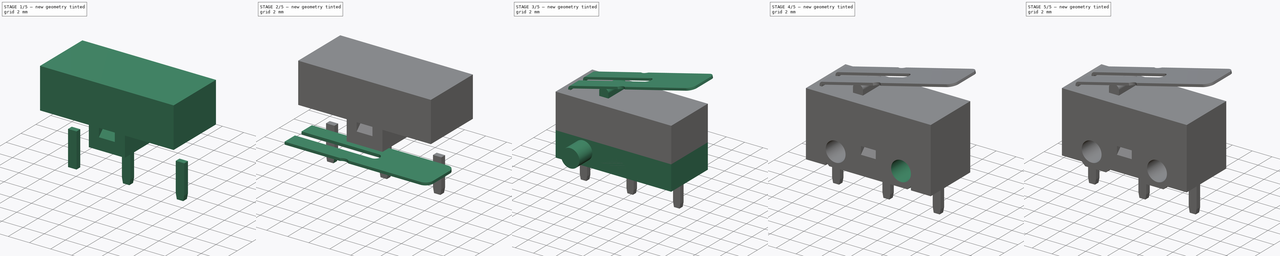
[diagram: build sequence overview — one tinted view per stage of 5, left to right]
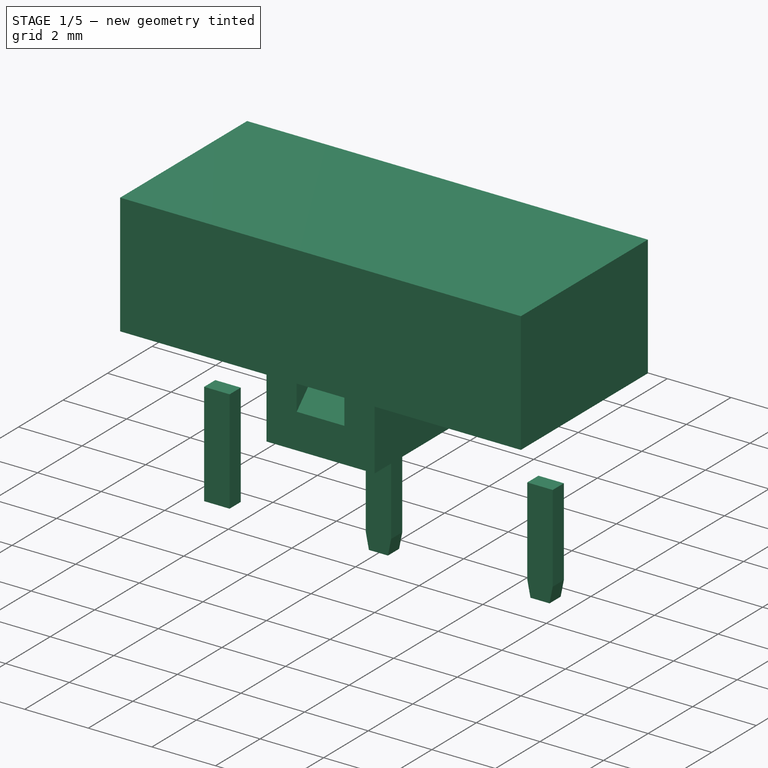
[diagram: stage 1 of 5 — iso view after this stage's code; geometry added in this stage tinted green]
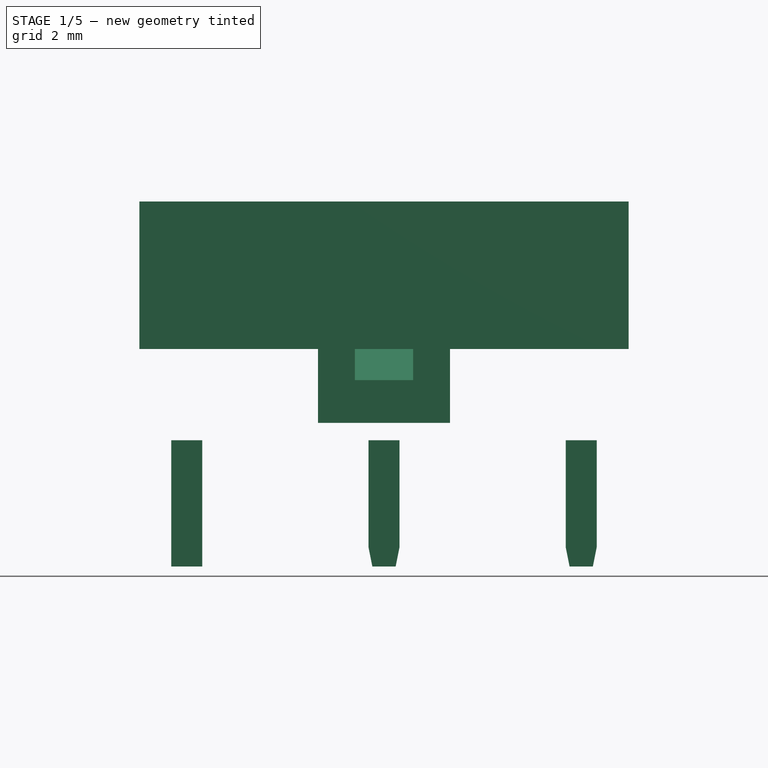
[diagram: stage 1 of 5 — front view after this stage's code; geometry added in this stage tinted green]
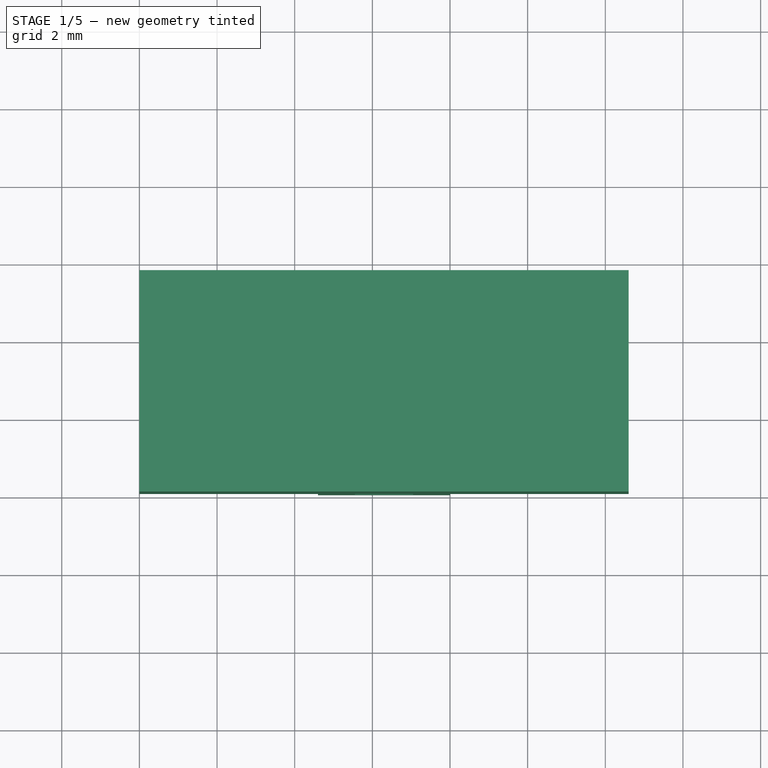
[diagram: stage 1 of 5 — top view after this stage's code; geometry added in this stage tinted green]
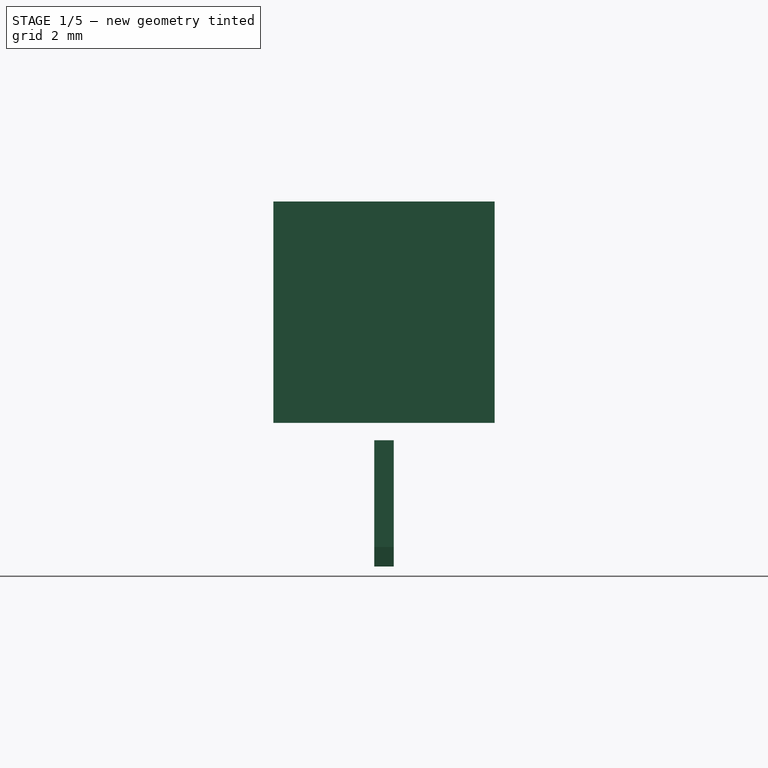
[diagram: stage 1 of 5 — right view after this stage's code; geometry added in this stage tinted green]
FCSTD DOCUMENT  (FreeCAD 0.18.4R)
Label: GT1-9898
License: All rights reserved
LicenseURL: http://en.wikipedia.org/wiki/All_rights_reserved
objects: Part::Cut×16, Part::Box×12, Part::Extrusion×10, Sketcher::SketchObject×9, Part::Chamfer×4, Part::Cylinder×2, Part::Fillet×2, Part::Mirroring×1, Part::FeaturePython×1
note: 57 computed .brp shape members not serialized (recipe doc carries the construction recipe); baked Part::Feature solids carry a one-line shape summary decoded from their .brp

FEATURE [Part::Box] Box009  label="Cube009"
  AttacherType = Attacher::AttachEngine3D
  Height = 3.25
  Length = 0.8
  Placement = pos=(0.82,2.6,-2.9) rot=(0,0,1;0rad)
  Width = 0.5
  expr: Placement.Base.y = 5.7 / 2 - 0.5 / 2
  expr: Placement.Base.x = 5.9 - 2.54 * 2
FEATURE [Part::Box] Box010  label="Cube010"
  AttacherType = Attacher::AttachEngine3D
  Height = 3.25
  Length = 0.8
  Placement = pos=(5.9,2.6,-2.9) rot=(0,0,1;0rad)
  Width = 0.5
FEATURE [Part::Box] Box011  label="Cube011"
  AttacherType = Attacher::AttachEngine3D
  Height = 3.25
  Length = 0.8
  Placement = pos=(10.98,2.6,-2.9) rot=(0,0,1;0rad)
  Width = 0.5
  expr: Placement.Base.x = 5.9 + 2.54 + 2.54
FEATURE [Part::Chamfer] Chamfer001
  Base = -> Box010
  Edges = 2 edges: [Edge4 r1=0.5 r2=0.1,Edge8 r1=0.5 r2=0.1]
FEATURE [Part::Chamfer] Chamfer002
  Base = -> Box011
  Edges = 2 edges: [Edge4 r1=0.5 r2=0.1,Edge8 r1=0.5 r2=0.1]
FEATURE [Sketcher::SketchObject] Sketch008
  MapMode = 45
  Placement = pos=(0,0,0) rot=(-1,0,0;4.71239rad)
  Support = -> [Sketch008,Cut001]
  sketch-geometry (4):
    g0: LineSegment StartX=5.55 StartY=1.6 StartZ=0 EndX=7.05 EndY=1.6 EndZ=0
    g1: LineSegment StartX=7.05 StartY=1.6 StartZ=0 EndX=7.05 EndY=2.7 EndZ=0
    g2: LineSegment StartX=7.05 StartY=2.7 StartZ=0 EndX=5.55 EndY=2.7 EndZ=0
    g3: LineSegment StartX=5.55 StartY=2.7 StartZ=0 EndX=5.55 EndY=1.6 EndZ=0
  constraints (12):
    c: Coincident(g0,g1)
    c: Coincident(g1,g2)
    c: Coincident(g2,g3)
    c: Coincident(g3,g0)
    c: Horizontal(g0)
    c: Horizontal(g2)
    c: Vertical(g1)
    c: Vertical(g3)
    c: DistanceY(g-1,g0) = 1.6
    c: Distance(g0) = 1.5
    c: Distance(g1) = 1.1
    c: DistanceX(g-1,g0) = 5.55
FEATURE [Part::Extrusion] Extrude008
  Base = -> Sketch008
  Dir = (0,-1,0)
  DirMode = 2
  FaceMakerClass = Part::FaceMakerBullseye
  LengthFwd = -5.7
  LengthRev = 0
  Solid = true
  Symmetric = false
FEATURE [Part::Extrusion] Extrude009
  Base = -> Sketch008
  Dir = (0,-1,0)
  DirMode = 2
  FaceMakerClass = Part::FaceMakerBullseye
  LengthFwd = -5.7
  LengthRev = 0
  Solid = true
  Symmetric = false
FEATURE [Part::Cut] Cut015
  Base = -> Cut001
  Tool = -> Extrude008
FEATURE [Part::Chamfer] Chamfer003
  Base = -> Extrude009
  Edges = 2 edges r=0.8: [Edge9,Edge10]
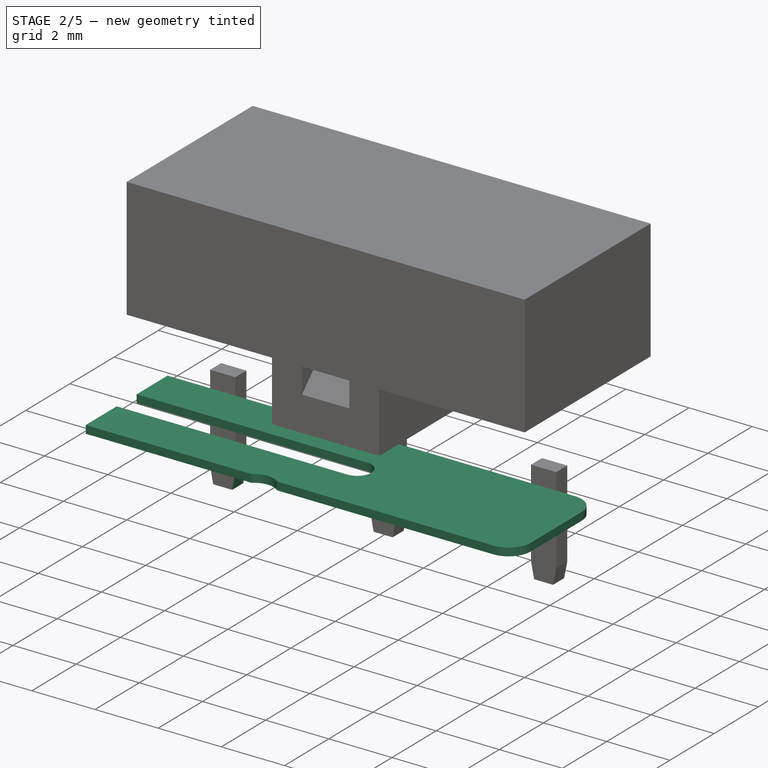
[diagram: stage 2 of 5 — iso view after this stage's code; geometry added in this stage tinted green]
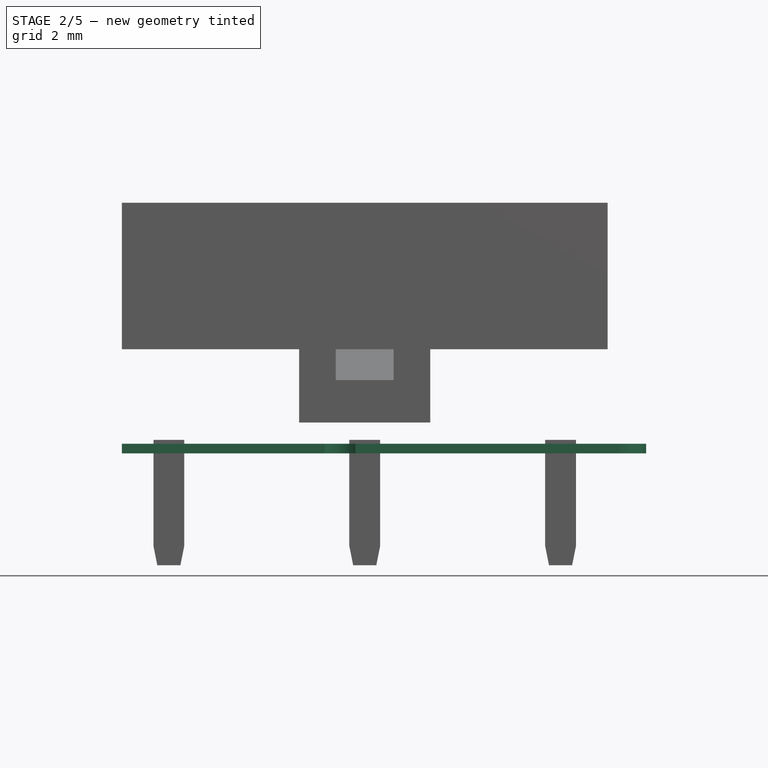
[diagram: stage 2 of 5 — front view after this stage's code; geometry added in this stage tinted green]
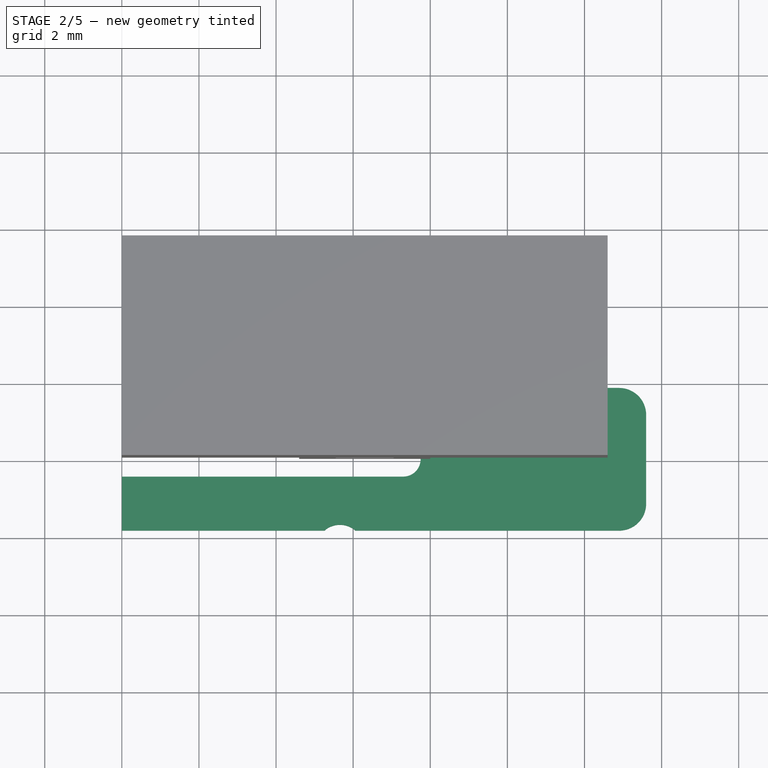
[diagram: stage 2 of 5 — top view after this stage's code; geometry added in this stage tinted green]
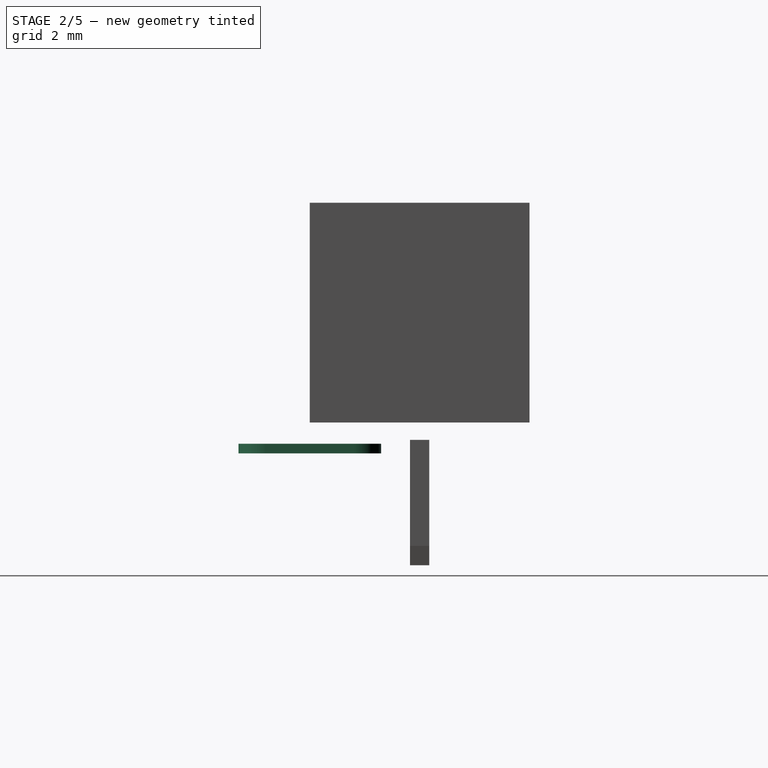
[diagram: stage 2 of 5 — right view after this stage's code; geometry added in this stage tinted green]
FEATURE [Sketcher::SketchObject] Sketch004
  sketch-geometry (4):
    g0: LineSegment StartX=0 StartY=-0.45 StartZ=0 EndX=0 EndY=0.45 EndZ=0
    g1: LineSegment StartX=0 StartY=0.45 StartZ=0 EndX=7.3 EndY=0.45 EndZ=0
    g2: LineSegment StartX=0 StartY=-0.45 StartZ=0 EndX=7.3 EndY=-0.45 EndZ=0
    g3: ArcOfCircle CenterX=7.3 CenterY=0 CenterZ=0 NormalX=0 NormalY=0 NormalZ=1 AngleXU=0 Radius=0.45 StartAngle=4.71239 EndAngle=7.85398
  constraints (13):
    c: Vertical(g0)
    c: DistanceY(g-1,g0) = 0.45
    c: DistanceY(g0,g-1) = 0.45
    c: DistanceX(g-1,g0) = 0
    c: Horizontal(g1)
    c: Coincident(g1,g0)
    c: Distance(g1) = 7.3
    c: Horizontal(g2)
    c: Coincident(g2,g0)
    c: Equal(g2,g1)
    c: DistanceX(g3,g2) = 0
    c: Coincident(g3,g2)
    c: Coincident(g3,g1)
FEATURE [Sketcher::SketchObject] Sketch006
  MapMode = 2
  sketch-geometry (3):
    g0: ArcOfCircle CenterX=5.65717 CenterY=2.30833 CenterZ=0 NormalX=0 NormalY=0 NormalZ=1 AngleXU=0 Radius=0.608333 StartAngle=3.99485 EndAngle=5.42993
    g1: LineSegment StartX=5.25717 StartY=1.85 StartZ=0 EndX=6.05717 EndY=1.85 EndZ=0
    g2: GeomPoint X=5.65717 Y=1.7 Z=0
  constraints (8):
    c: Horizontal(g1)
    c: Coincident(g1,g0)
    c: Coincident(g1,g0)
    c: DistanceX(g1,g1) = 0.8
    c: PointOnObject(g2,g0)
    c: DistanceY(g2,g0) = 0.15
    c: DistanceX(g0,g2) = 0.4
    c: DistanceY(g-1,g0) = 1.85
FEATURE [Part::Extrusion] Extrude005
  Base = -> Sketch006
  Dir = (0,0,1)
  DirMode = 2
  FaceMakerClass = Part::FaceMakerBullseye
  LengthFwd = 0.25
  LengthRev = 0
  Solid = true
  Symmetric = false
FEATURE [Part::Mirroring] Part__Mirroring  label="Extrude005 (Mirror #1)"
  Base = (0,0,0)
  Normal = (0,1,0)
  Source = -> Extrude005
FEATURE [Part::Extrusion] Extrude007
  Base = -> Sketch004
  Dir = (0,0,1)
  DirMode = 2
  FaceMakerClass = Part::FaceMakerBullseye
  LengthFwd = 0.25
  LengthRev = 0
  Solid = true
  Symmetric = false
FEATURE [Sketcher::SketchObject] Sketch007
  sketch-geometry (4):
    g0: LineSegment StartX=0 StartY=-1.85 StartZ=0 EndX=13.6 EndY=-1.85 EndZ=0
    g1: LineSegment StartX=13.6 StartY=-1.85 StartZ=0 EndX=13.6 EndY=1.85 EndZ=0
    g2: LineSegment StartX=13.6 StartY=1.85 StartZ=0 EndX=0 EndY=1.85 EndZ=0
    g3: LineSegment StartX=0 StartY=1.85 StartZ=0 EndX=0 EndY=-1.85 EndZ=0
  constraints (12):
    c: Coincident(g0,g1)
    c: Coincident(g1,g2)
    c: Coincident(g2,g3)
    c: Coincident(g3,g0)
    c: Horizontal(g0)
    c: Horizontal(g2)
    c: Vertical(g1)
    c: Vertical(g3)
    c: Distance(g2) = 13.6
    c: Distance(g1) = 3.7
    c: DistanceY(g-1,g2) = 1.85
    c: DistanceX(g-1,g0) = 0
FEATURE [Part::Extrusion] Extrude004
  Base = -> Sketch007
  Dir = (0,0,1)
  DirMode = 2
  FaceMakerClass = Part::FaceMakerBullseye
  LengthFwd = 0.25
  LengthRev = 0
  Solid = true
  Symmetric = false
FEATURE [Part::Cut] Cut014
  Base = -> Extrude004
  Tool = -> Extrude007
FEATURE [Part::Fillet] Fillet001
  Base = -> Cut014
  Edges = 2 edges r=0.7: [Edge2,Edge8]
FEATURE [Part::Cut] Cut013
  Base = -> Fillet001
  Tool = -> Part__Mirroring
FEATURE [Part::Cut] Cut001
  Base = -> Cut
  Tool = -> Box004
FEATURE [Part::Chamfer] Chamfer
  Base = -> Box009
  Edges = 2 edges: [Edge4 r1=0.5 r2=0.1,Edge8 r1=0.5 r2=0.1]
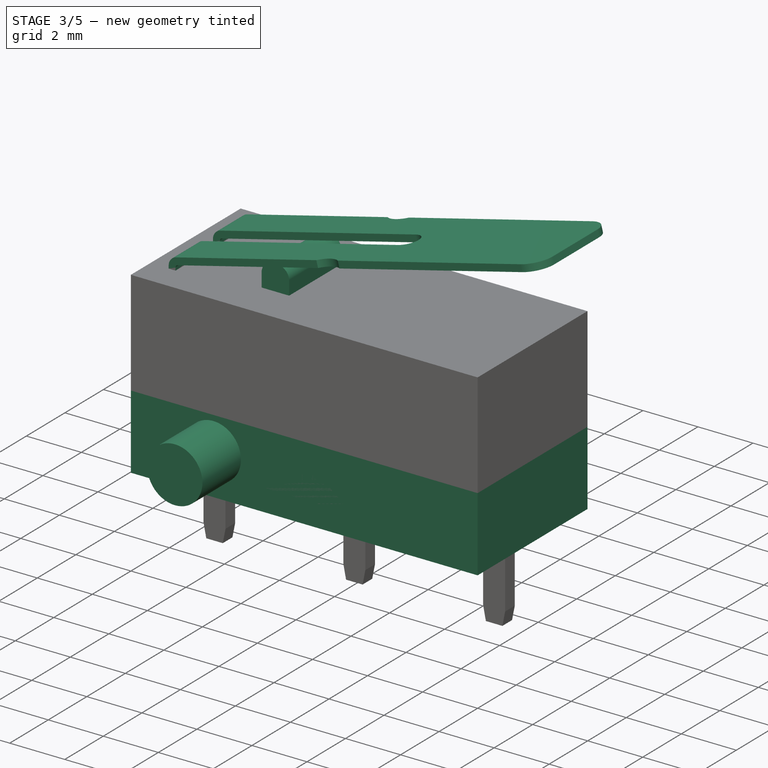
[diagram: stage 3 of 5 — iso view after this stage's code; geometry added in this stage tinted green]
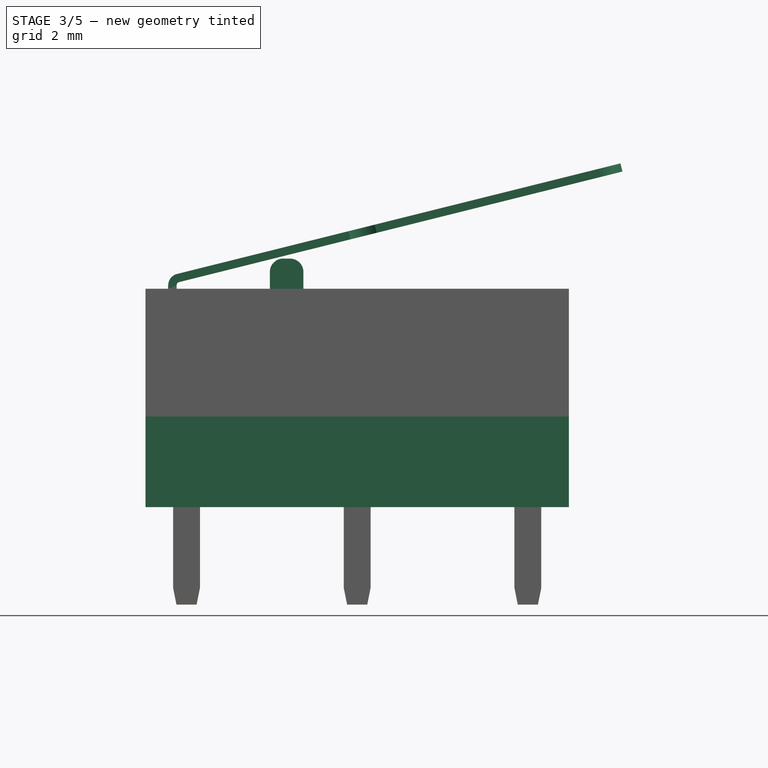
[diagram: stage 3 of 5 — front view after this stage's code; geometry added in this stage tinted green]
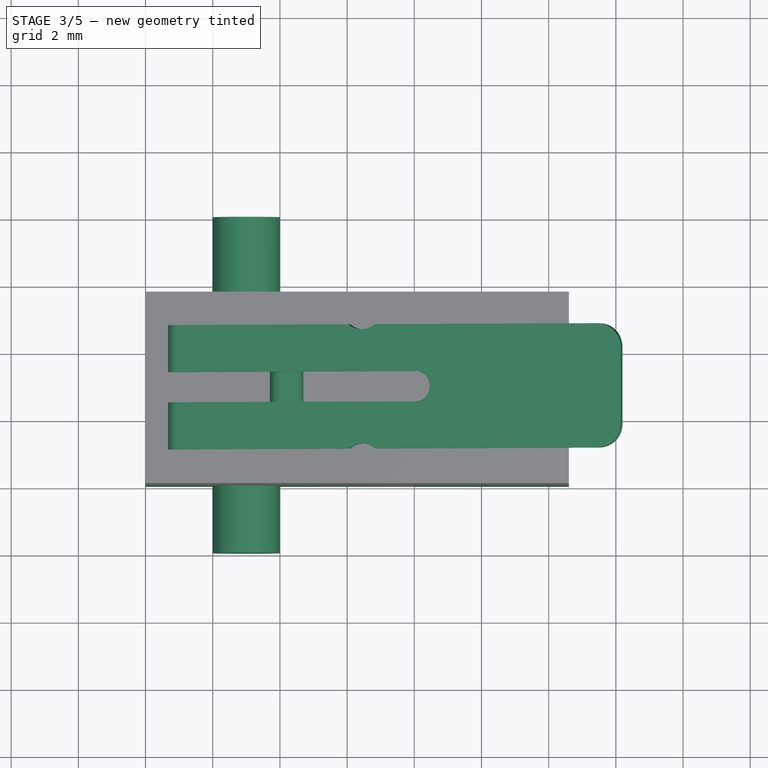
[diagram: stage 3 of 5 — top view after this stage's code; geometry added in this stage tinted green]
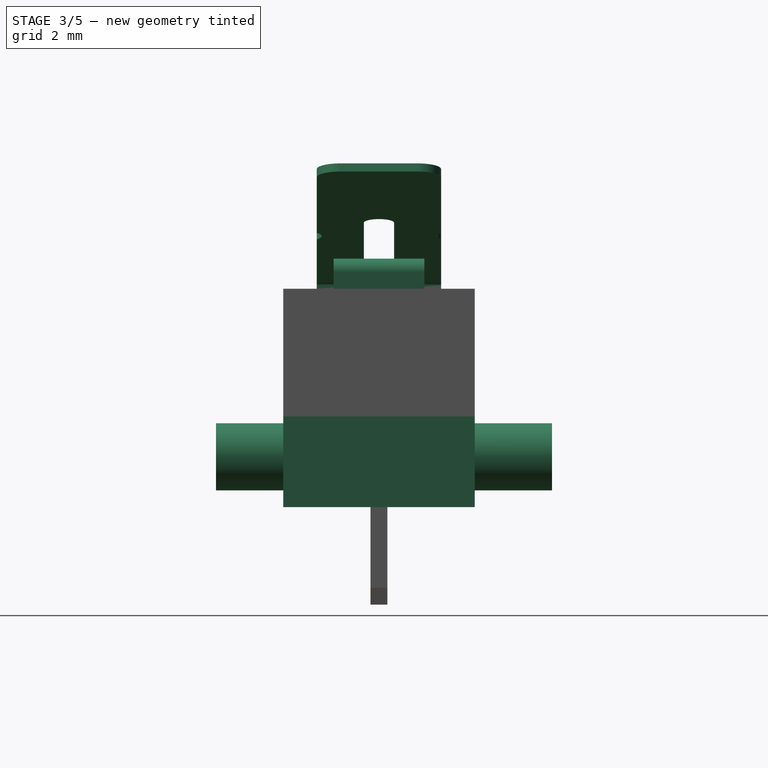
[diagram: stage 3 of 5 — right view after this stage's code; geometry added in this stage tinted green]
FEATURE [Part::Box] Box  label="Cube"
  AttacherType = Attacher::AttachEngine3D
  Height = 1.9
  Length = 3.4
  Placement = pos=(4.6,0,0.8) rot=(0,0,1;0rad)
  Width = 5.7
FEATURE [Part::Box] Box001  label="Cube001"
  AttacherType = Attacher::AttachEngine3D
  Height = 2.7
  Length = 12.6
  Width = 5.7
FEATURE [Part::Cylinder] Cylinder
  Angle = 360
  AttacherType = Attacher::AttachEngine3D
  Height = 10
  Placement = pos=(3,-2,1.5) rot=(-1,0,0;1.5708rad)
  Radius = 1
FEATURE [Sketcher::SketchObject] Sketch
  Placement = pos=(0,0,0) rot=(1,0,0;1.5708rad)
  sketch-geometry (3):
    g0: LineSegment StartX=0 StartY=0 StartZ=0 EndX=0 EndY=0.35 EndZ=0
    g1: LineSegment StartX=0 StartY=0.35 StartZ=0 EndX=0.35 EndY=0 EndZ=0
    g2: LineSegment StartX=0.35 StartY=0 StartZ=0 EndX=0 EndY=0 EndZ=0
  constraints (9):
    c: Coincident(g0,g1)
    c: Coincident(g1,g2)
    c: Coincident(g2,g0)
    c: Horizontal(g2)
    c: Perpendicular(g0,g2)
    c: Distance(g2) = 0.35
    c: Equal(g2,g0)
    c: DistanceX(g-1,g0) = 0
    c: DistanceY(g0) = 0
FEATURE [Part::Extrusion] Extrude
  Base = -> Sketch
  Dir = (0,-1,3e-16)
  DirMode = 2
  FaceMakerClass = Part::FaceMakerBullseye
  LengthFwd = -5.7
  LengthRev = 0
  Placement = pos=(2,0,0) rot=(0,0,1;0rad)
  Solid = true
  Symmetric = false
FEATURE [Part::Box] Box008  label="Cube008"
  AttacherType = Attacher::AttachEngine3D
  Height = 1
  Length = 1
  Placement = pos=(0,1.5,6.5) rot=(0,0,1;0rad)
  Width = 2.7
FEATURE [Part::Fillet] Fillet
  Base = -> Box008
  Edges = 2 edges r=0.4: [Edge2,Edge6]
  Placement = pos=(3.7,0,-0.1) rot=(0,0,1;0rad)
FEATURE [Sketcher::SketchObject] Sketch005
  MapMode = 2
  sketch-geometry (3):
    g0: ArcOfCircle CenterX=5.65717 CenterY=2.30833 CenterZ=0 NormalX=0 NormalY=0 NormalZ=1 AngleXU=0 Radius=0.608333 StartAngle=3.99485 EndAngle=5.42993
    g1: LineSegment StartX=5.25717 StartY=1.85 StartZ=0 EndX=6.05717 EndY=1.85 EndZ=0
    g2: GeomPoint X=5.65717 Y=1.7 Z=0
  constraints (8):
    c: Horizontal(g1)
    c: Coincident(g1,g0)
    c: Coincident(g1,g0)
    c: DistanceX(g1,g1) = 0.8
    c: PointOnObject(g2,g0)
    c: DistanceY(g2,g0) = 0.15
    c: DistanceX(g0,g2) = 0.4
    c: DistanceY(g-1,g0) = 1.85
FEATURE [Part::Extrusion] Extrude006
  Base = -> Sketch005
  Dir = (0,0,1)
  DirMode = 2
  FaceMakerClass = Part::FaceMakerBullseye
  LengthFwd = 0.25
  LengthRev = 0
  Solid = true
  Symmetric = false
FEATURE [Part::Cut] Cut012
  Base = -> Cut013
  Placement = pos=(0,0,0) rot=(0,-1,0;0.244346rad)
  Tool = -> Extrude006
FEATURE [Part::FeaturePython] Bend  # WARN: FeaturePython — macro-defined, semantics opaque (R4)
  AutoMiter = true
  BendType = 0
  LengthList = [0.1]
  Placement = pos=(1,2.85,6.7) rot=(0,0,1;0rad)
  ReliefFactor = 0.7
  UseReliefFactor = false
  angle = -76
  baseObject = -> Cut012 [Face12,Face5]
  bendAList = [-76]
  extend1 = 0
  extend2 = 0
  gap1 = 0
  gap2 = 0
  invert = false
  kfactor = 0.5
  length = 0.1
  miterangle1 = 0
  miterangle2 = 0
  offset = 0
  radius = 0.1
  reliefType = 0
  reliefd = 1
  reliefw = 0.8
  sketchflip = false
  sketchinvert = false
  unfold = false
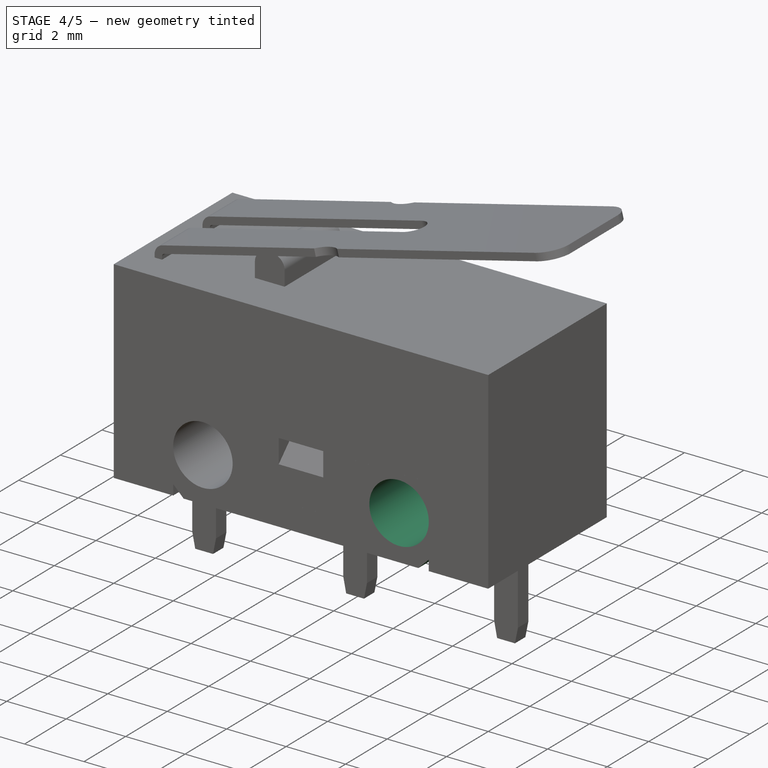
[diagram: stage 4 of 5 — iso view after this stage's code; geometry added in this stage tinted green]
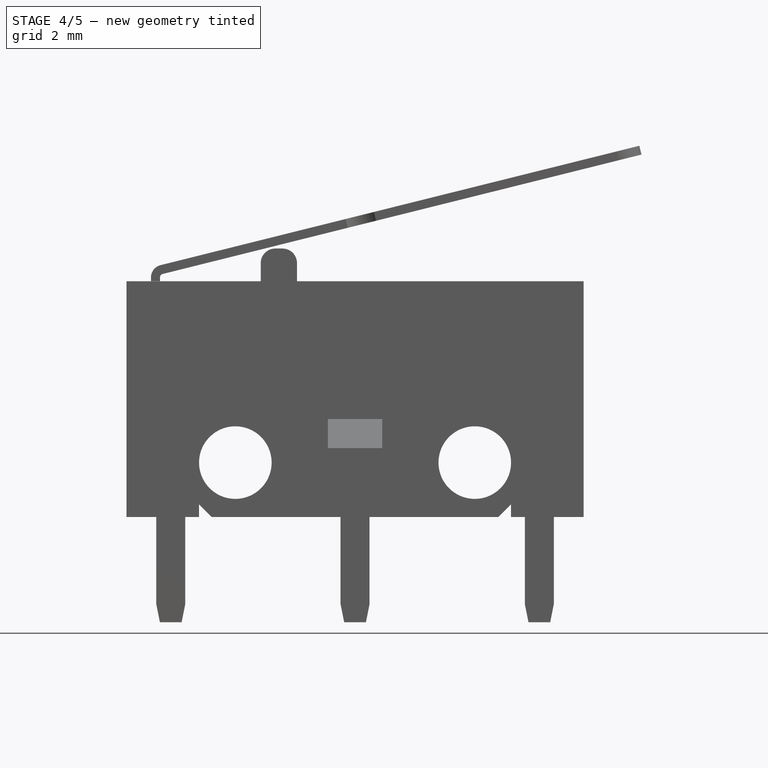
[diagram: stage 4 of 5 — front view after this stage's code; geometry added in this stage tinted green]
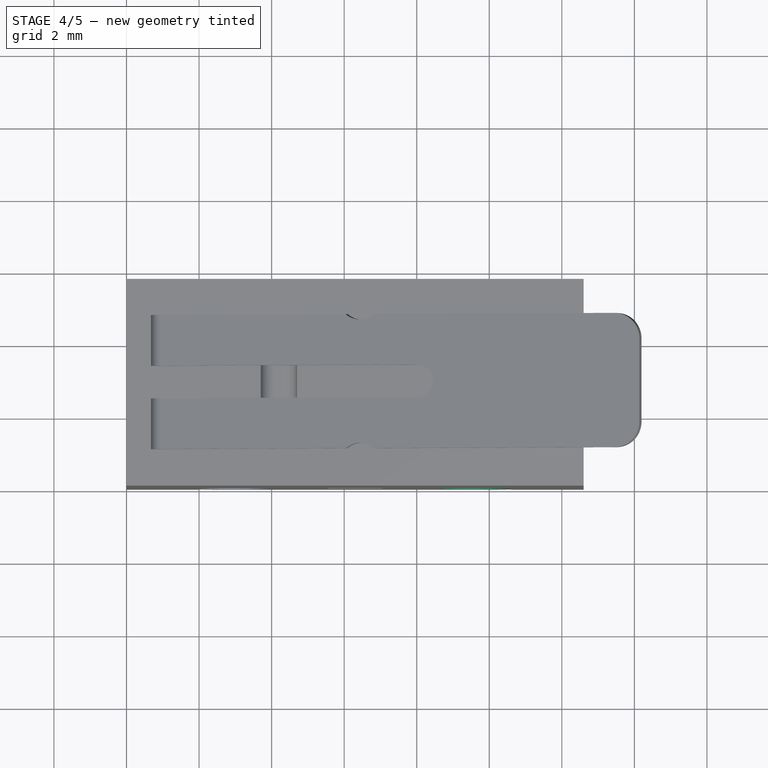
[diagram: stage 4 of 5 — top view after this stage's code; geometry added in this stage tinted green]
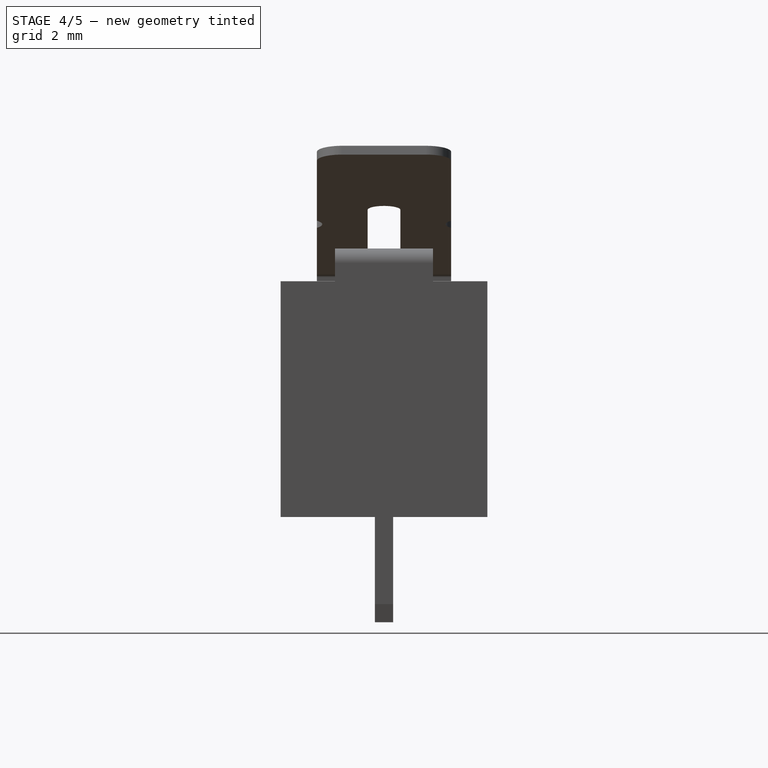
[diagram: stage 4 of 5 — right view after this stage's code; geometry added in this stage tinted green]
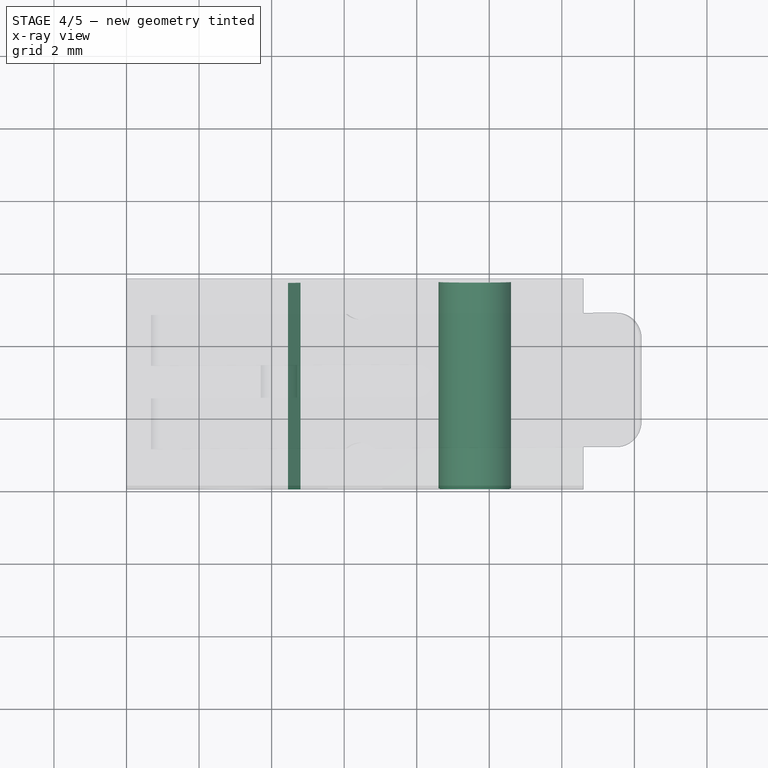
[diagram: stage 4 of 5 — x-ray composite at the top view; earlier geometry ghosted, this stage's added geometry solid]
FEATURE [Part::Box] Box002  label="Cube002"
  AttacherType = Attacher::AttachEngine3D
  Height = 5.7
  Length = 12.6
  Placement = pos=(0,0,0.8) rot=(0,0,1;0rad)
  Width = 5.7
FEATURE [Part::Box] Box003  label="Cube003"
  AttacherType = Attacher::AttachEngine3D
  Height = 1.9
  Length = 4.6
  Placement = pos=(0,0,0.8) rot=(0,0,1;0rad)
  Width = 5.7
FEATURE [Part::Box] Box004  label="Cube004"
  AttacherType = Attacher::AttachEngine3D
  Height = 1.9
  Length = 4.6
  Placement = pos=(8,0,0.8) rot=(0,0,1;0rad)
  Width = 5.7
FEATURE [Part::Cut] Cut
  Base = -> Box002
  Tool = -> Box003
FEATURE [Part::Cut] Cut002
  Base = -> Box001
  Tool = -> Box
FEATURE [Part::Cylinder] Cylinder001
  Angle = 360
  AttacherType = Attacher::AttachEngine3D
  Height = 10
  Placement = pos=(9.6,-2,1.5) rot=(-1,0,0;1.5708rad)
  Radius = 1
FEATURE [Part::Cut] Cut003
  Base = -> Cut002
  Tool = -> Cylinder
FEATURE [Part::Cut] Cut004
  Base = -> Cut003
  Tool = -> Cylinder001
FEATURE [Sketcher::SketchObject] Sketch002
  Placement = pos=(0,0,0) rot=(1,0,0;1.5708rad)
  sketch-geometry (3):
    g0: LineSegment StartX=0 StartY=0 StartZ=0 EndX=0 EndY=0.35 EndZ=0
    g1: LineSegment StartX=0 StartY=0.35 StartZ=0 EndX=0.35 EndY=0 EndZ=0
    g2: LineSegment StartX=0.35 StartY=0 StartZ=0 EndX=0 EndY=0 EndZ=0
  constraints (9):
    c: Coincident(g0,g1)
    c: Coincident(g1,g2)
    c: Coincident(g2,g0)
    c: Horizontal(g2)
    c: Perpendicular(g0,g2)
    c: Distance(g2) = 0.35
    c: Equal(g2,g0)
    c: DistanceX(g-1,g0) = 0
    c: DistanceY(g0) = 0
FEATURE [Part::Extrusion] Extrude002
  Base = -> Sketch002
  Dir = (0,-1,3e-16)
  DirMode = 2
  FaceMakerClass = Part::FaceMakerBullseye
  LengthFwd = -5.7
  LengthRev = 0
  Placement = pos=(4.8,0,0) rot=(0,-1,0;1.5708rad)
  Solid = true
  Symmetric = false
FEATURE [Sketcher::SketchObject] Sketch003
  Placement = pos=(0,0,0) rot=(1,0,0;1.5708rad)
  sketch-geometry (3):
    g0: LineSegment StartX=0 StartY=0 StartZ=0 EndX=0 EndY=0.35 EndZ=0
    g1: LineSegment StartX=0 StartY=0.35 StartZ=0 EndX=0.35 EndY=0 EndZ=0
    g2: LineSegment StartX=0.35 StartY=0 StartZ=0 EndX=0 EndY=0 EndZ=0
  constraints (9):
    c: Coincident(g0,g1)
    c: Coincident(g1,g2)
    c: Coincident(g2,g0)
    c: Horizontal(g2)
    c: Perpendicular(g0,g2)
    c: Distance(g2) = 0.35
    c: Equal(g2,g0)
    c: DistanceX(g-1,g0) = 0
    c: DistanceY(g0) = 0
FEATURE [Part::Extrusion] Extrude003
  Base = -> Sketch003
  Dir = (0,-1,3e-16)
  DirMode = 2
  FaceMakerClass = Part::FaceMakerBullseye
  LengthFwd = -5.7
  LengthRev = 0
  Placement = pos=(10.6,0,-1.1e-15) rot=(0,-1,0;1.5708rad)
  Solid = true
  Symmetric = false
FEATURE [Part::Cut] Cut005
  Base = -> Cut004
  Tool = -> Extrude
FEATURE [Part::Cut] Cut006
  Base = -> Cut005
  Tool = -> Extrude003
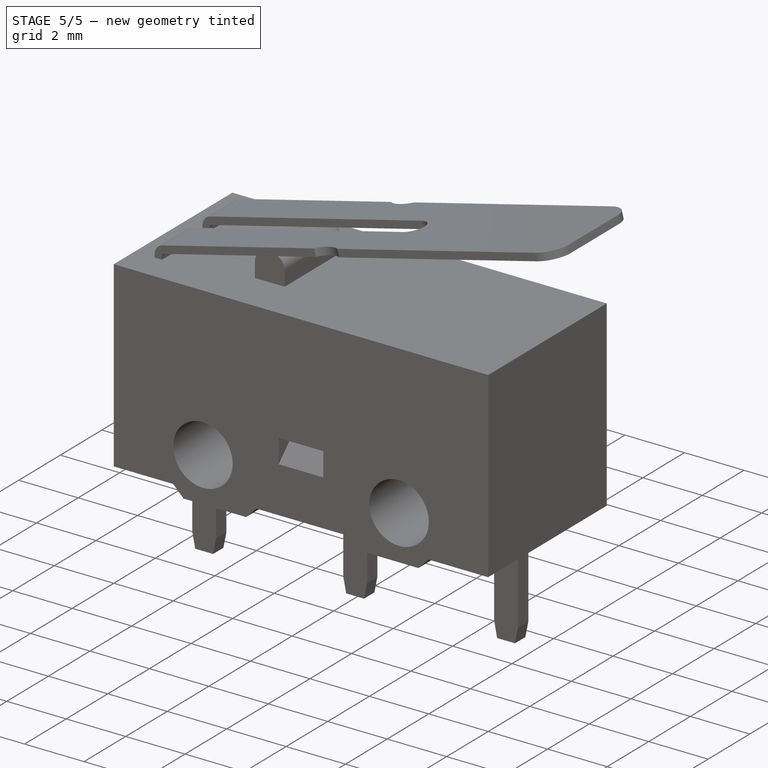
[diagram: stage 5 of 5 — iso view after this stage's code; geometry added in this stage tinted green]
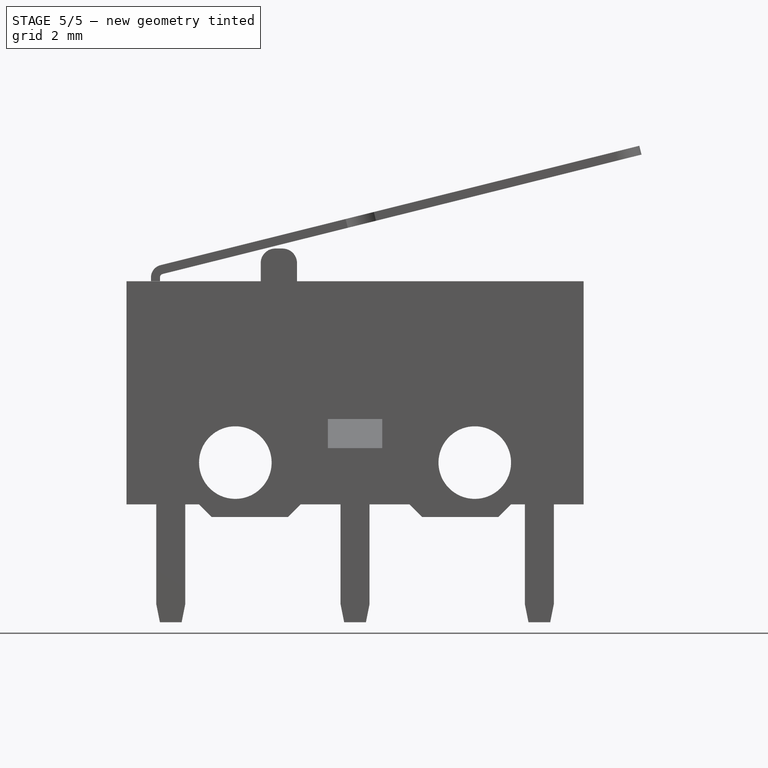
[diagram: stage 5 of 5 — front view after this stage's code; geometry added in this stage tinted green]
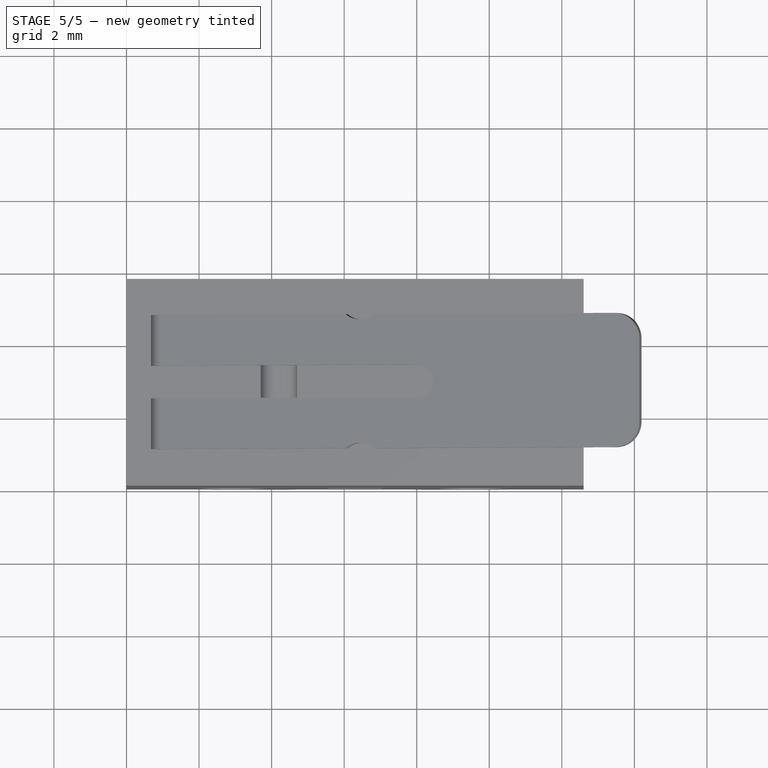
[diagram: stage 5 of 5 — top view after this stage's code; geometry added in this stage tinted green]
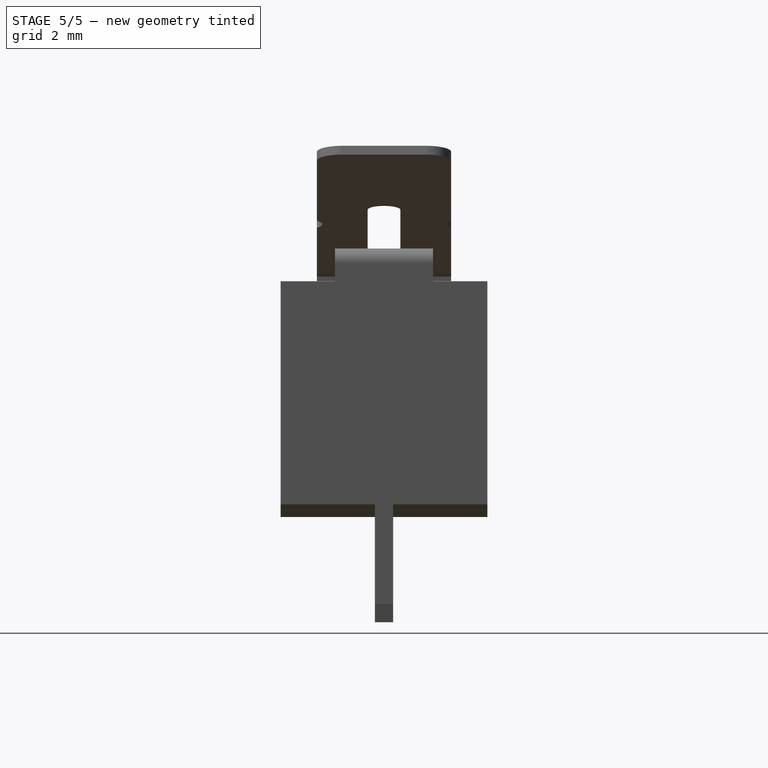
[diagram: stage 5 of 5 — right view after this stage's code; geometry added in this stage tinted green]
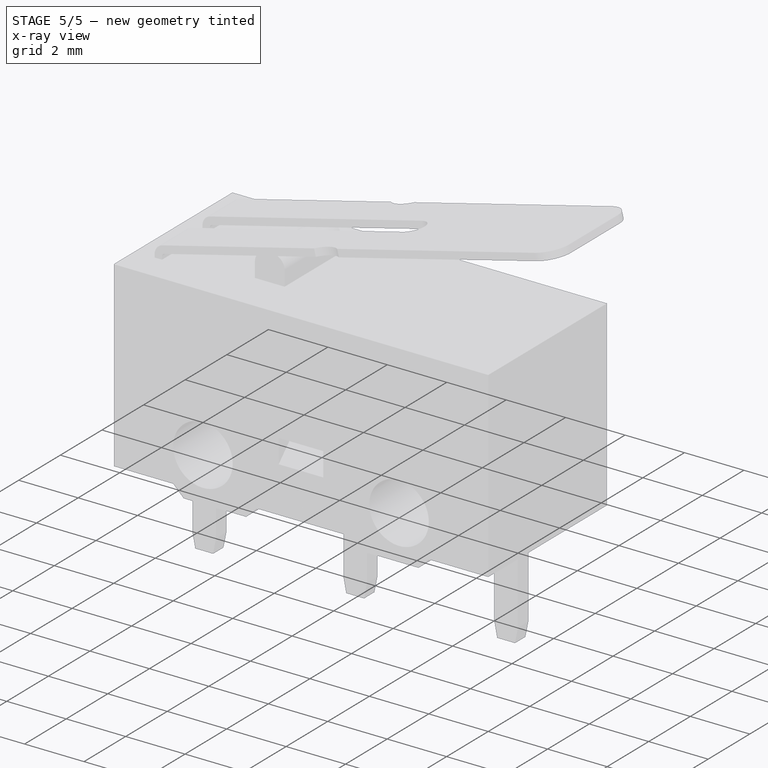
[diagram: stage 5 of 5 — x-ray composite at the iso view; earlier geometry ghosted, this stage's added geometry solid]
FEATURE [Part::Box] Box005  label="Cube005"
  AttacherType = Attacher::AttachEngine3D
  Height = 0.35
  Length = 2
  Width = 5.7
FEATURE [Part::Box] Box006  label="Cube006"
  AttacherType = Attacher::AttachEngine3D
  Height = 0.35
  Length = 3
  Placement = pos=(4.8,0,0) rot=(0,0,1;0rad)
  Width = 5.7
FEATURE [Part::Box] Box007  label="Cube007"
  AttacherType = Attacher::AttachEngine3D
  Height = 0.35
  Length = 2
  Placement = pos=(10.6,0,0) rot=(0,0,1;0rad)
  Width = 5.7
FEATURE [Sketcher::SketchObject] Sketch001
  Placement = pos=(0,0,0) rot=(1,0,0;1.5708rad)
  sketch-geometry (3):
    g0: LineSegment StartX=0 StartY=0 StartZ=0 EndX=0 EndY=0.35 EndZ=0
    g1: LineSegment StartX=0 StartY=0.35 StartZ=0 EndX=0.35 EndY=0 EndZ=0
    g2: LineSegment StartX=0.35 StartY=0 StartZ=0 EndX=0 EndY=0 EndZ=0
  constraints (9):
    c: Coincident(g0,g1)
    c: Coincident(g1,g2)
    c: Coincident(g2,g0)
    c: Horizontal(g2)
    c: Perpendicular(g0,g2)
    c: Distance(g2) = 0.35
    c: Equal(g2,g0)
    c: DistanceX(g-1,g0) = 0
    c: DistanceY(g0) = 0
FEATURE [Part::Extrusion] Extrude001
  Base = -> Sketch001
  Dir = (0,-1,3e-16)
  DirMode = 2
  FaceMakerClass = Part::FaceMakerBullseye
  LengthFwd = -5.7
  LengthRev = 0
  Placement = pos=(7.8,0,0) rot=(0,0,1;0rad)
  Solid = true
  Symmetric = false
FEATURE [Part::Cut] Cut007
  Base = -> Cut006
  Tool = -> Extrude002
FEATURE [Part::Cut] Cut008
  Base = -> Cut007
  Tool = -> Extrude001
FEATURE [Part::Cut] Cut009
  Base = -> Cut008
  Tool = -> Box005
FEATURE [Part::Cut] Cut010
  Base = -> Cut009
  Tool = -> Box007
FEATURE [Part::Cut] Cut011
  Base = -> Cut010
  Tool = -> Box006
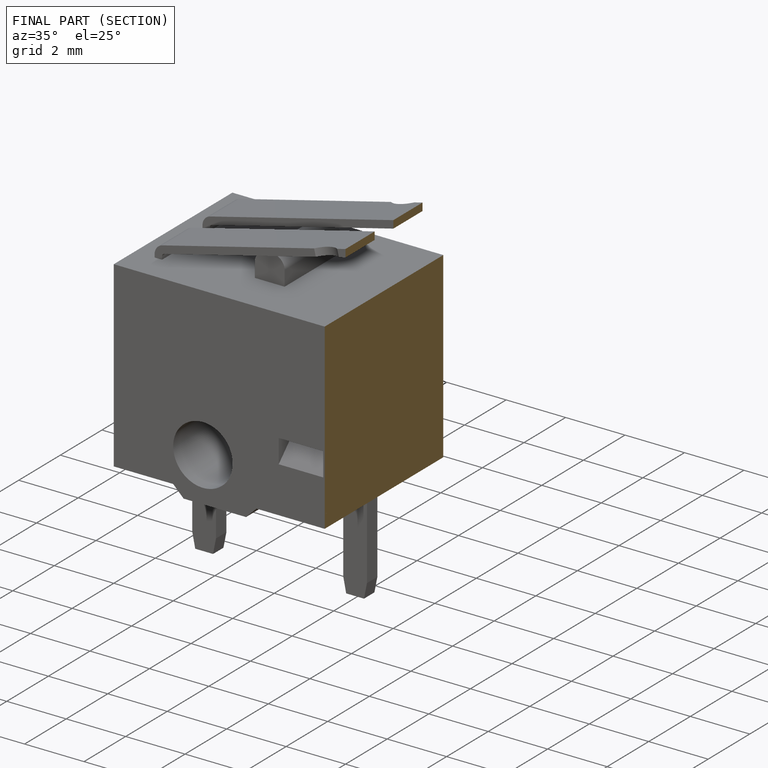
[diagram: finished part — half-section view (interior)]
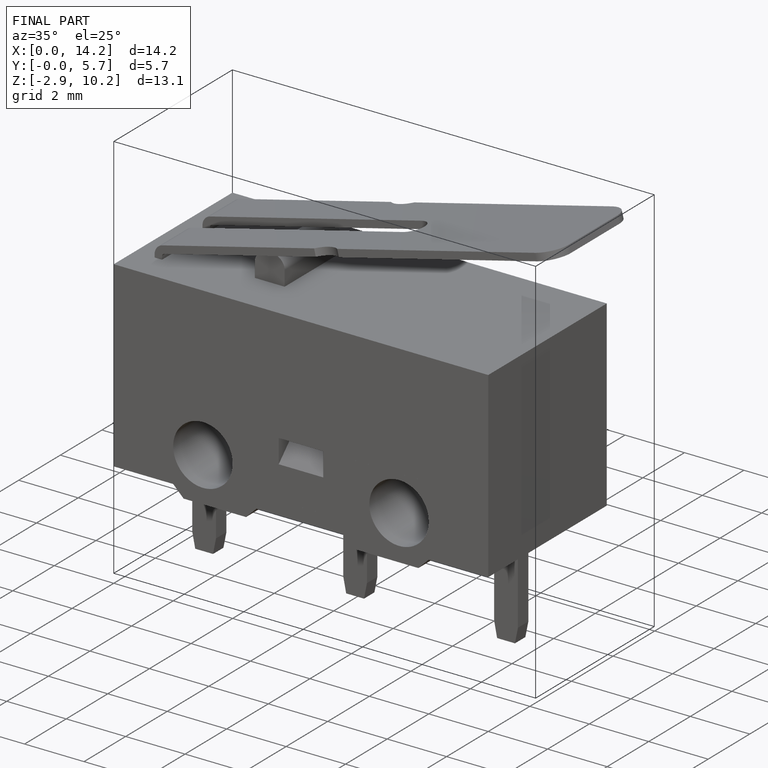
[diagram: finished part — iso view with bounding-box wireframe]
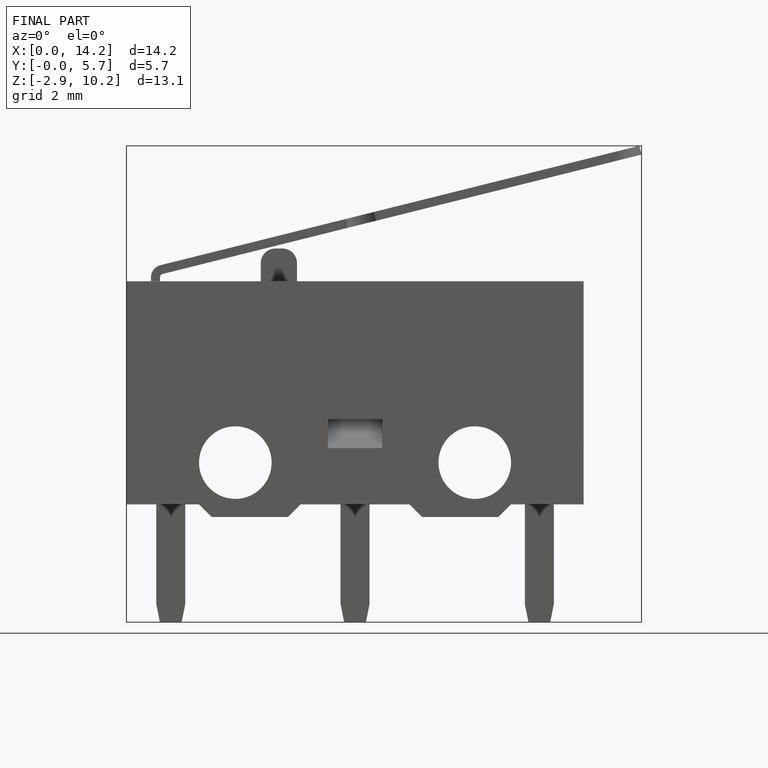
[diagram: finished part — front view with bounding-box wireframe]
